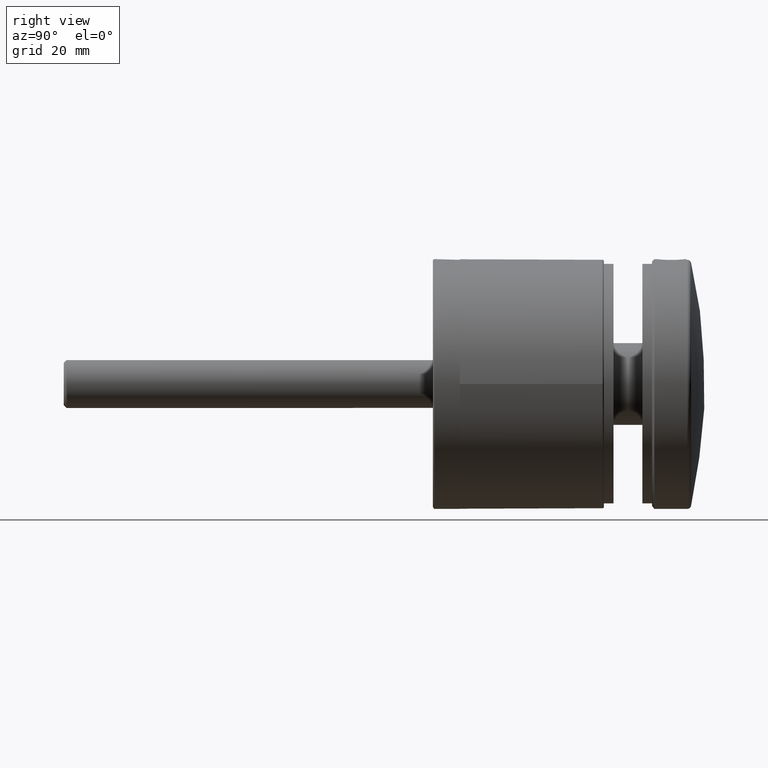
[diagram: clean part render]
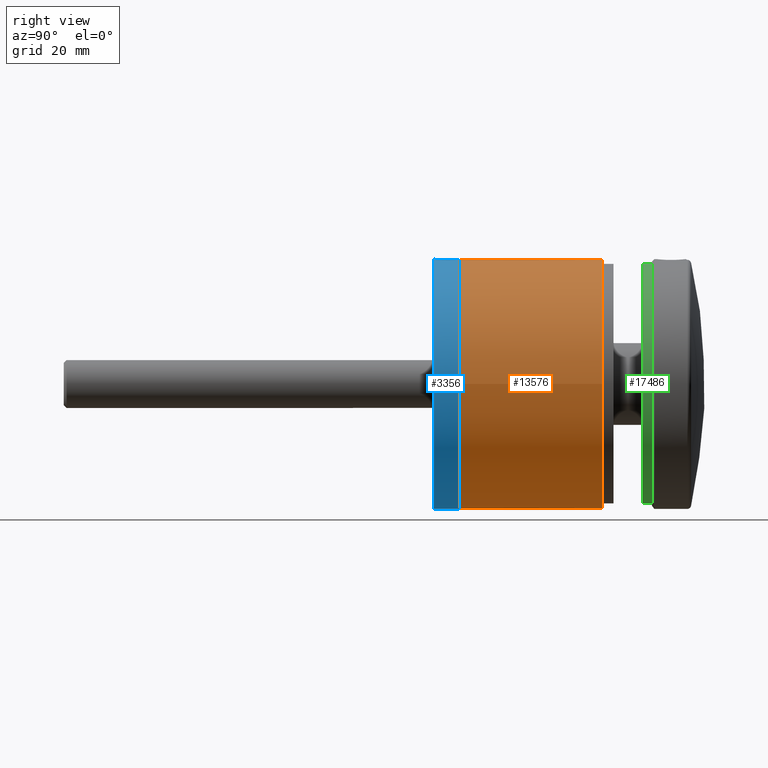
[diagram: same view with three faces highlighted in distinct colors, each labeled with its STEP entity id]
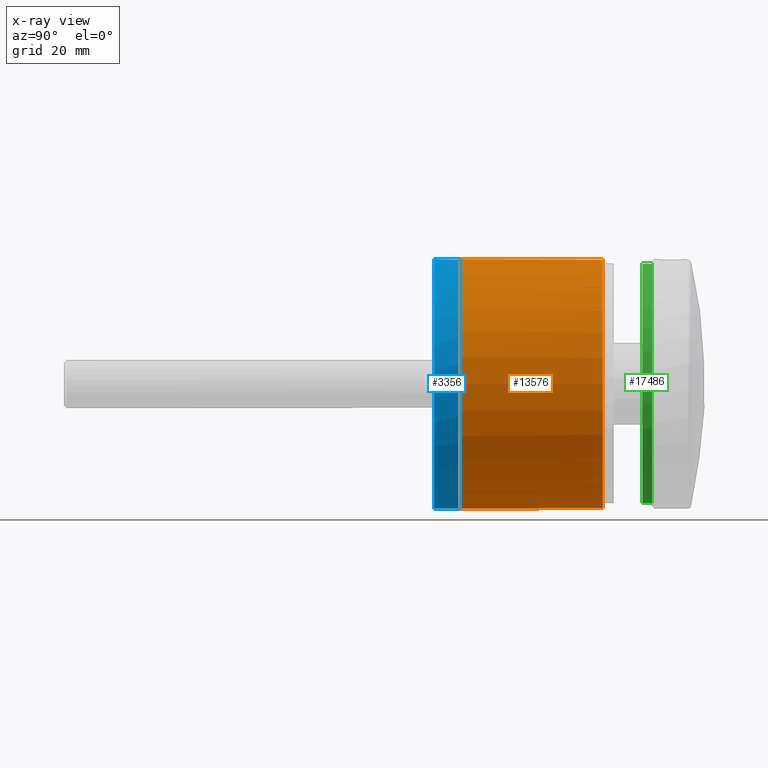
[diagram: x-ray of the same camera — body ghosted, the three highlighted faces saturated]
A machine part, right view with three faces highlighted in distinct colors.
The next image is the same camera in x-ray (body ghosted, the three faces saturated) — at least one of them is partly hidden behind the body in this view.
Their STEP definitions:

[orange] entity #13576 — the highlighted cylindrical surface (bore or boss wall) has radius 26 mm, axis along (-0, -1, -0).
#56 = CARTESIAN_POINT ( 'NONE',  ( 25.99999999999998934, -1.415903576889821946E-15, 0.000000000000000000 ) ) ;
#1398 = VERTEX_POINT ( 'NONE', #56 ) ;
#2041 = EDGE_CURVE ( 'NONE', #29684, #29684, #3777, .T. ) ;
#2297 = CARTESIAN_POINT ( 'NONE',  ( -8.979204615000625176E-15, 0.000000000000000000, 0.000000000000000000 ) ) ;
#2413 = CARTESIAN_POINT ( 'NONE',  ( -26.00000000000000711, 29.75000000000000711, 0.000000000000000000 ) ) ;
#3777 = CIRCLE ( 'NONE', #23826, 26.00000000000000000 ) ;
#6754 = DIRECTION ( 'NONE',  ( -5.445782988037661848E-17, -1.000000000000000000, -0.000000000000000000 ) ) ;
#8368 = EDGE_CURVE ( 'NONE', #1398, #1398, #23136, .T. ) ;
#8886 = DIRECTION ( 'NONE',  ( 1.000000000000000000, 0.000000000000000000, 0.000000000000000000 ) ) ;
#8951 = DIRECTION ( 'NONE',  ( -1.000000000000000000, 0.000000000000000000, 0.000000000000000000 ) ) ;
#9642 = EDGE_LOOP ( 'NONE', ( #24029 ) ) ;
#11095 = CARTESIAN_POINT ( 'NONE',  ( -7.639541999943332888E-15, 24.59999999999999787, 0.000000000000000000 ) ) ;
#11306 = DIRECTION ( 'NONE',  ( -5.445782988037777096E-17, -1.000000000000000000, -0.000000000000000000 ) ) ;
#13485 = FACE_OUTER_BOUND ( 'NONE', #9642, .T. ) ;
#13576 = ADVANCED_FACE ( 'NONE', ( #18188, #13485 ), #27273, .T. ) ;
#17085 = CARTESIAN_POINT ( 'NONE',  ( -7.359084176059386256E-15, 29.75000000000000711, 0.000000000000000000 ) ) ;
#18188 = FACE_OUTER_BOUND ( 'NONE', #19613, .T. ) ;
#19613 = EDGE_LOOP ( 'NONE', ( #30839 ) ) ;
#23136 = CIRCLE ( 'NONE', #29046, 26.00000000000000000 ) ;
#23826 = AXIS2_PLACEMENT_3D ( 'NONE', #17085, #6754, #8951 ) ;
#24029 = ORIENTED_EDGE ( 'NONE', *, *, #8368, .F. ) ;
#25892 = DIRECTION ( 'NONE',  ( 1.000000000000000000, -5.445782988037776479E-17, 0.000000000000000000 ) ) ;
#27273 = CYLINDRICAL_SURFACE ( 'NONE', #28709, 26.00000000000000000 ) ;
#28709 = AXIS2_PLACEMENT_3D ( 'NONE', #11095, #11306, #8886 ) ;
#29046 = AXIS2_PLACEMENT_3D ( 'NONE', #2297, #31669, #25892 ) ;
#29684 = VERTEX_POINT ( 'NONE', #2413 ) ;
#30839 = ORIENTED_EDGE ( 'NONE', *, *, #2041, .T. ) ;
#31669 = DIRECTION ( 'NONE',  ( -5.445782988037777096E-17, -1.000000000000000000, -0.000000000000000000 ) ) ;

[blue] entity #3356 — the highlighted cylindrical surface (bore or boss wall) has radius 26 mm, axis along (0, 1, 0).
#1267 = EDGE_LOOP ( 'NONE', ( #18224 ) ) ;
#2459 = FACE_OUTER_BOUND ( 'NONE', #21471, .T. ) ;
#2632 = CARTESIAN_POINT ( 'NONE',  ( 0.000000000000000000, 29.74999999999998579, 26.00000000000022027 ) ) ;
#3045 = DIRECTION ( 'NONE',  ( -2.630770061871633432E-48, -1.000000000000000000, 6.842277657836020854E-48 ) ) ;
#3230 = CARTESIAN_POINT ( 'NONE',  ( 0.000000000000000000, 24.39999999999999858, -26.00000000000022027 ) ) ;
#3356 = ADVANCED_FACE ( 'NONE', ( #22815, #2459 ), #6208, .T. ) ;
#4276 = EDGE_CURVE ( 'NONE', #22595, #22595, #24444, .T. ) ;
#4716 = ORIENTED_EDGE ( 'NONE', *, *, #29138, .F. ) ;
#6185 = AXIS2_PLACEMENT_3D ( 'NONE', #19121, #19348, #19476 ) ;
#6208 = CYLINDRICAL_SURFACE ( 'NONE', #6500, 26.00000000000022027 ) ;
#6500 = AXIS2_PLACEMENT_3D ( 'NONE', #28838, #10554, #15432 ) ;
#8490 = CARTESIAN_POINT ( 'NONE',  ( 0.000000000000000000, 29.74999999999998579, 0.000000000000000000 ) ) ;
#10554 = DIRECTION ( 'NONE',  ( -2.630770061871633432E-48, -1.000000000000000000, 6.842277657836020854E-48 ) ) ;
#15432 = DIRECTION ( 'NONE',  ( 0.000000000000000000, 0.000000000000000000, -1.000000000000000000 ) ) ;
#18224 = ORIENTED_EDGE ( 'NONE', *, *, #4276, .T. ) ;
#19121 = CARTESIAN_POINT ( 'NONE',  ( 0.000000000000000000, 24.39999999999999858, 8.552847072295026068E-46 ) ) ;
#19348 = DIRECTION ( 'NONE',  ( -2.630770061871633432E-48, -1.000000000000000000, 6.842277657836020854E-48 ) ) ;
#19476 = DIRECTION ( 'NONE',  ( 0.000000000000000000, 0.000000000000000000, -1.000000000000000000 ) ) ;
#21471 = EDGE_LOOP ( 'NONE', ( #4716 ) ) ;
#21599 = DIRECTION ( 'NONE',  ( 0.000000000000000000, 0.000000000000000000, 1.000000000000000000 ) ) ;
#22595 = VERTEX_POINT ( 'NONE', #2632 ) ;
#22815 = FACE_OUTER_BOUND ( 'NONE', #1267, .T. ) ;
#24444 = CIRCLE ( 'NONE', #32526, 26.00000000000022027 ) ;
#24804 = CIRCLE ( 'NONE', #6185, 26.00000000000022027 ) ;
#25726 = VERTEX_POINT ( 'NONE', #3230 ) ;
#28838 = CARTESIAN_POINT ( 'NONE',  ( 0.000000000000000000, 15.00000000000000000, 8.552847072295026068E-46 ) ) ;
#29138 = EDGE_CURVE ( 'NONE', #25726, #25726, #24804, .T. ) ;
#32526 = AXIS2_PLACEMENT_3D ( 'NONE', #8490, #3045, #21599 ) ;

[green] entity #17486 — the highlighted cylindrical surface (bore or boss wall) has radius 25 mm, axis along (0, 1, 0).
#659 = CIRCLE ( 'NONE', #10812, 25.00000000000022382 ) ;
#5190 = DIRECTION ( 'NONE',  ( 0.000000000000000000, -1.000000000000000000, 0.000000000000000000 ) ) ;
#5678 = CARTESIAN_POINT ( 'NONE',  ( 0.000000000000000000, 0.000000000000000000, 25.00000000000022382 ) ) ;
#8179 = DIRECTION ( 'NONE',  ( 0.000000000000000000, 0.000000000000000000, -1.000000000000000000 ) ) ;
#8957 = EDGE_LOOP ( 'NONE', ( #26047 ) ) ;
#10812 = AXIS2_PLACEMENT_3D ( 'NONE', #33668, #26213, #18214 ) ;
#11403 = CARTESIAN_POINT ( 'NONE',  ( 0.000000000000000000, 2.000000000000000000, 0.000000000000000000 ) ) ;
#13706 = DIRECTION ( 'NONE',  ( 0.000000000000000000, 0.000000000000000000, 1.000000000000000000 ) ) ;
#13905 = FACE_OUTER_BOUND ( 'NONE', #8957, .T. ) ;
#15828 = CARTESIAN_POINT ( 'NONE',  ( 0.000000000000000000, 2.000000000000000000, 0.000000000000000000 ) ) ;
#16015 = ORIENTED_EDGE ( 'NONE', *, *, #30669, .T. ) ;
#16539 = DIRECTION ( 'NONE',  ( 0.000000000000000000, 1.000000000000000000, 0.000000000000000000 ) ) ;
#16975 = VERTEX_POINT ( 'NONE', #21760 ) ;
#17486 = ADVANCED_FACE ( 'NONE', ( #13905, #26866 ), #30582, .T. ) ;
#18214 = DIRECTION ( 'NONE',  ( 0.000000000000000000, 0.000000000000000000, 1.000000000000000000 ) ) ;
#19600 = AXIS2_PLACEMENT_3D ( 'NONE', #15828, #5190, #8179 ) ;
#21388 = EDGE_LOOP ( 'NONE', ( #16015 ) ) ;
#21760 = CARTESIAN_POINT ( 'NONE',  ( 0.000000000000000000, 2.000000000000000000, 25.00000000000022382 ) ) ;
#25100 = AXIS2_PLACEMENT_3D ( 'NONE', #11403, #16539, #13706 ) ;
#26047 = ORIENTED_EDGE ( 'NONE', *, *, #33164, .F. ) ;
#26213 = DIRECTION ( 'NONE',  ( 0.000000000000000000, 1.000000000000000000, 0.000000000000000000 ) ) ;
#26866 = FACE_OUTER_BOUND ( 'NONE', #21388, .T. ) ;
#26966 = VERTEX_POINT ( 'NONE', #5678 ) ;
#30582 = CYLINDRICAL_SURFACE ( 'NONE', #19600, 25.00000000000022382 ) ;
#30669 = EDGE_CURVE ( 'NONE', #26966, #26966, #659, .T. ) ;
#33164 = EDGE_CURVE ( 'NONE', #16975, #16975, #33494, .T. ) ;
#33494 = CIRCLE ( 'NONE', #25100, 25.00000000000022382 ) ;
#33668 = CARTESIAN_POINT ( 'NONE',  ( 0.000000000000000000, 0.000000000000000000, 0.000000000000000000 ) ) ;